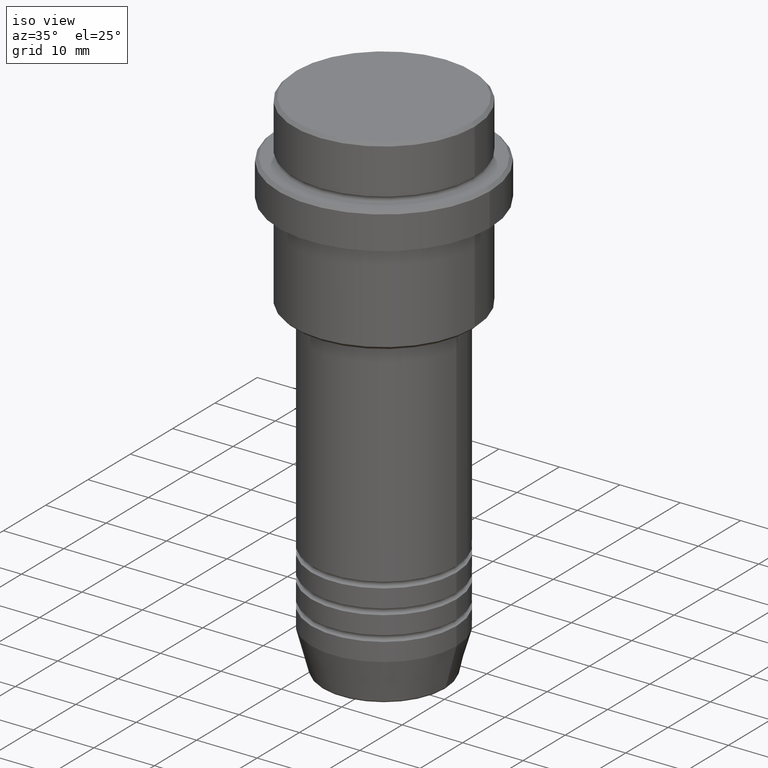
[diagram: clean part render]
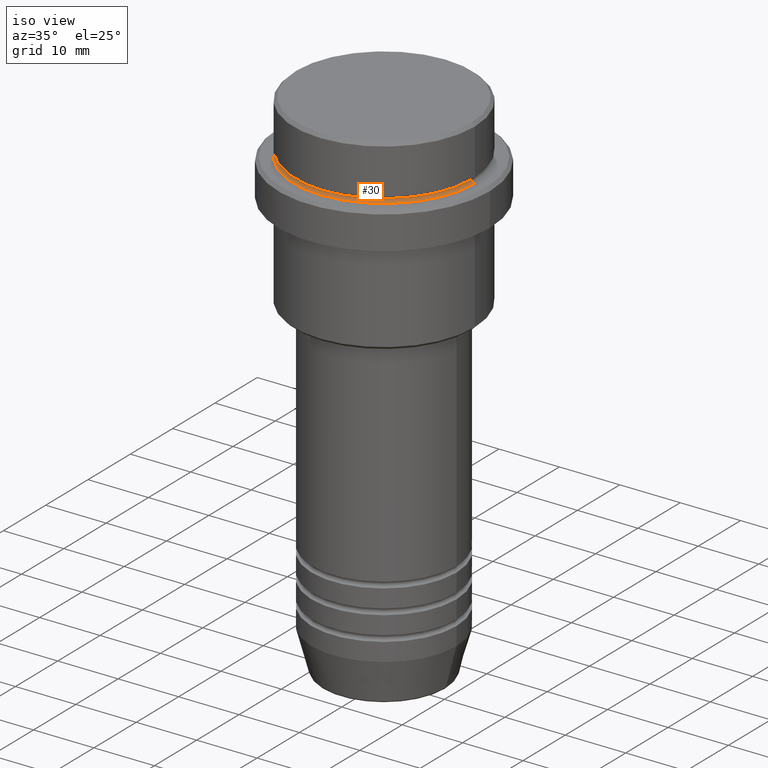
[diagram: same view with one face highlighted and labeled with its STEP entity id]
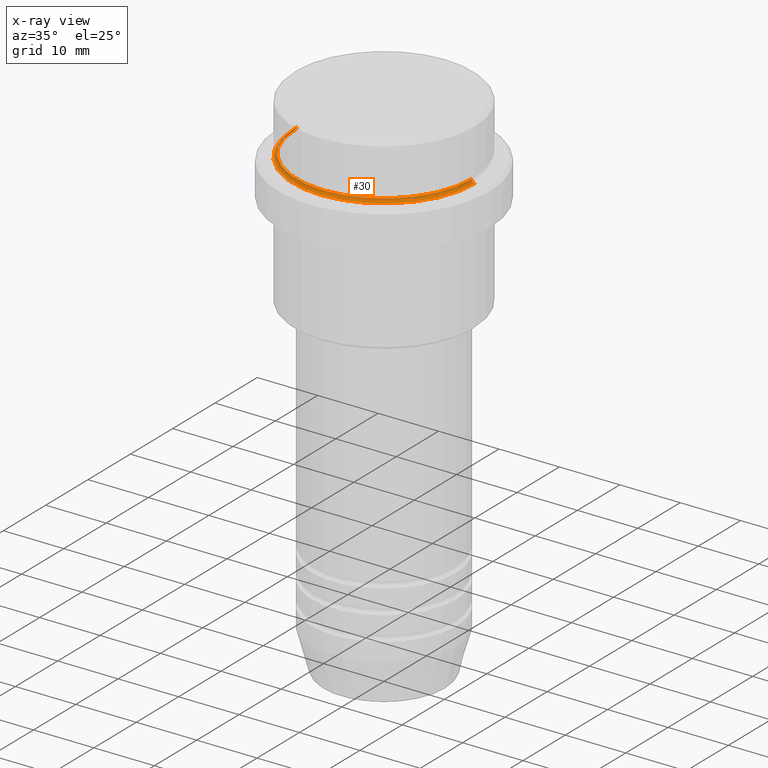
[diagram: x-ray of the same camera — body ghosted, the highlighted face saturated]
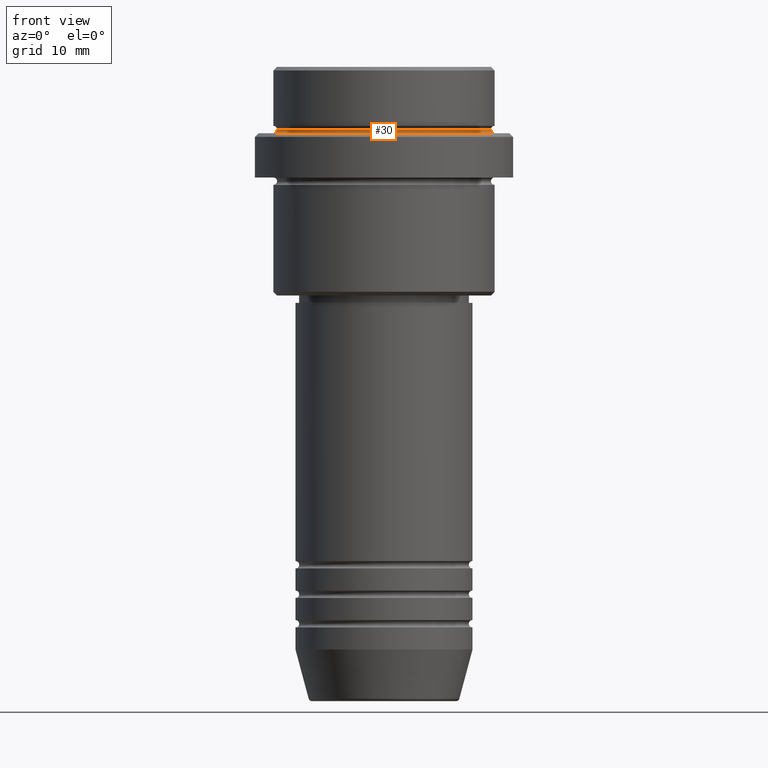
[diagram: same view with one face highlighted and labeled with its STEP entity id]
A machine part, iso view. The second image highlights one B-rep face of the part: STEP entity #30.
The next image is the same camera in x-ray: the body ghosted, the highlighted face saturated — about 2% of this face is hidden behind the body in this view.
A second angle (front view) of the same face is appended — the face is thin or edge-on in the first view.
In plain terms, the highlighted toroidal blend (fillet) surface has major radius 15 mm and minor (blend) radius 0.5 mm.
Its self-contained STEP definition (entity closure, byte-faithful):
#30 = ADVANCED_FACE ( 'NONE', ( #190 ), #1215, .F. ) ;
#46 = AXIS2_PLACEMENT_3D ( 'NONE', #738, #1167, #1056 ) ;
#110 = AXIS2_PLACEMENT_3D ( 'NONE', #444, #880, #1314 ) ;
#190 = FACE_OUTER_BOUND ( 'NONE', #307, .T. ) ;
#242 = DIRECTION ( 'NONE',  ( -0.000000000000000000, -0.000000000000000000, 1.000000000000000000 ) ) ;
#290 = DIRECTION ( 'NONE',  ( 0.000000000000000000, -1.000000000000000000, 0.000000000000000000 ) ) ;
#307 = EDGE_LOOP ( 'NONE', ( #484, #692, #1264, #736 ) ) ;
#444 = CARTESIAN_POINT ( 'NONE',  ( 0.000000000000000000, 0.000000000000000000, -8.499999999999998224 ) ) ;
#452 = CIRCLE ( 'NONE', #110, 14.49999999999999289 ) ;
#459 = VERTEX_POINT ( 'NONE', #1228 ) ;
#484 = ORIENTED_EDGE ( 'NONE', *, *, #1021, .F. ) ;
#542 = CARTESIAN_POINT ( 'NONE',  ( 0.000000000000000000, 0.000000000000000000, -8.499999999999998224 ) ) ;
#572 = EDGE_CURVE ( 'NONE', #459, #631, #1008, .T. ) ;
#581 = CARTESIAN_POINT ( 'NONE',  ( -14.99999999999999289, 1.836970198721028800E-15, -9.000000000000000000 ) ) ;
#610 = CARTESIAN_POINT ( 'NONE',  ( 14.99999999999999289, 0.000000000000000000, -8.499999999999998224 ) ) ;
#623 = CARTESIAN_POINT ( 'NONE',  ( 14.99999999999999289, 0.000000000000000000, -9.000000000000000000 ) ) ;
#631 = VERTEX_POINT ( 'NONE', #623 ) ;
#692 = ORIENTED_EDGE ( 'NONE', *, *, #1352, .T. ) ;
#736 = ORIENTED_EDGE ( 'NONE', *, *, #572, .F. ) ;
#738 = CARTESIAN_POINT ( 'NONE',  ( 0.000000000000000000, 0.000000000000000000, -9.000000000000000000 ) ) ;
#752 = CIRCLE ( 'NONE', #46, 14.99999999999999289 ) ;
#785 = VERTEX_POINT ( 'NONE', #1307 ) ;
#841 = AXIS2_PLACEMENT_3D ( 'NONE', #907, #1224, #1194 ) ;
#880 = DIRECTION ( 'NONE',  ( -0.000000000000000000, -0.000000000000000000, 1.000000000000000000 ) ) ;
#907 = CARTESIAN_POINT ( 'NONE',  ( -14.99999999999999289, 1.836970198721028800E-15, -8.499999999999998224 ) ) ;
#934 = VERTEX_POINT ( 'NONE', #581 ) ;
#944 = DIRECTION ( 'NONE',  ( 0.000000000000000000, 0.000000000000000000, -1.000000000000000000 ) ) ;
#1008 = CIRCLE ( 'NONE', #1390, 0.5000000000000004441 ) ;
#1021 = EDGE_CURVE ( 'NONE', #785, #459, #452, .T. ) ;
#1056 = DIRECTION ( 'NONE',  ( 1.000000000000000000, 0.000000000000000000, 0.000000000000000000 ) ) ;
#1075 = AXIS2_PLACEMENT_3D ( 'NONE', #542, #242, #1222 ) ;
#1083 = CIRCLE ( 'NONE', #841, 0.5000000000000004441 ) ;
#1167 = DIRECTION ( 'NONE',  ( 0.000000000000000000, 0.000000000000000000, -1.000000000000000000 ) ) ;
#1194 = DIRECTION ( 'NONE',  ( -1.000000000000000000, 1.224646799147349509E-16, 0.000000000000000000 ) ) ;
#1215 = TOROIDAL_SURFACE ( 'NONE', #1075, 14.99999999999999289, 0.5000000000000000000 ) ;
#1222 = DIRECTION ( 'NONE',  ( 1.000000000000000000, 0.000000000000000000, 0.000000000000000000 ) ) ;
#1224 = DIRECTION ( 'NONE',  ( 1.224646799147353207E-16, 1.000000000000000000, 0.000000000000000000 ) ) ;
#1228 = CARTESIAN_POINT ( 'NONE',  ( 14.49999999999999289, 0.000000000000000000, -8.499999999999998224 ) ) ;
#1264 = ORIENTED_EDGE ( 'NONE', *, *, #1336, .F. ) ;
#1307 = CARTESIAN_POINT ( 'NONE',  ( -14.49999999999999289, 1.806354028742345013E-15, -8.499999999999998224 ) ) ;
#1314 = DIRECTION ( 'NONE',  ( 1.000000000000000000, 0.000000000000000000, 0.000000000000000000 ) ) ;
#1336 = EDGE_CURVE ( 'NONE', #631, #934, #752, .T. ) ;
#1352 = EDGE_CURVE ( 'NONE', #785, #934, #1083, .T. ) ;
#1390 = AXIS2_PLACEMENT_3D ( 'NONE', #610, #290, #944 ) ;